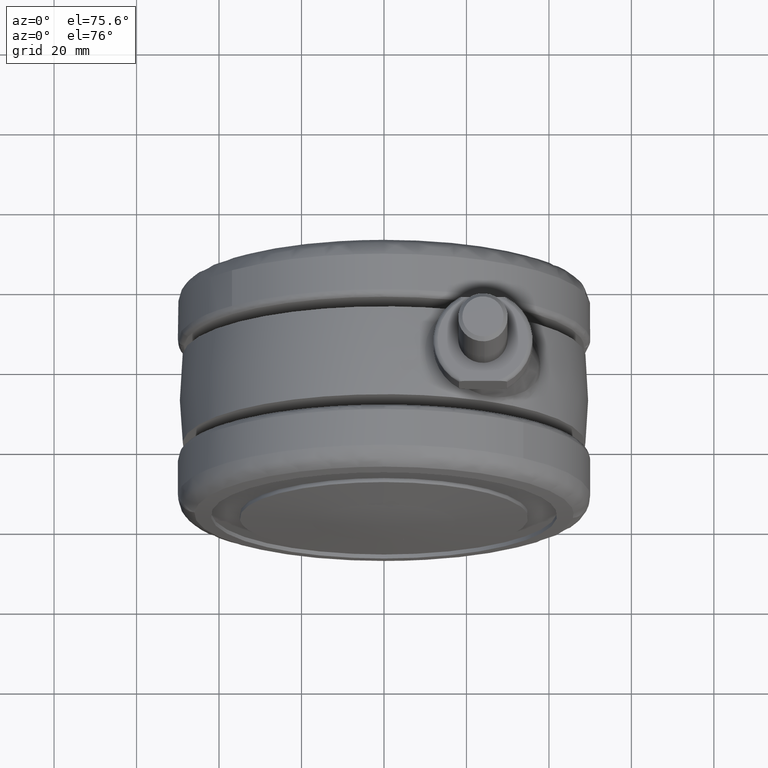
[diagram: clean part render]
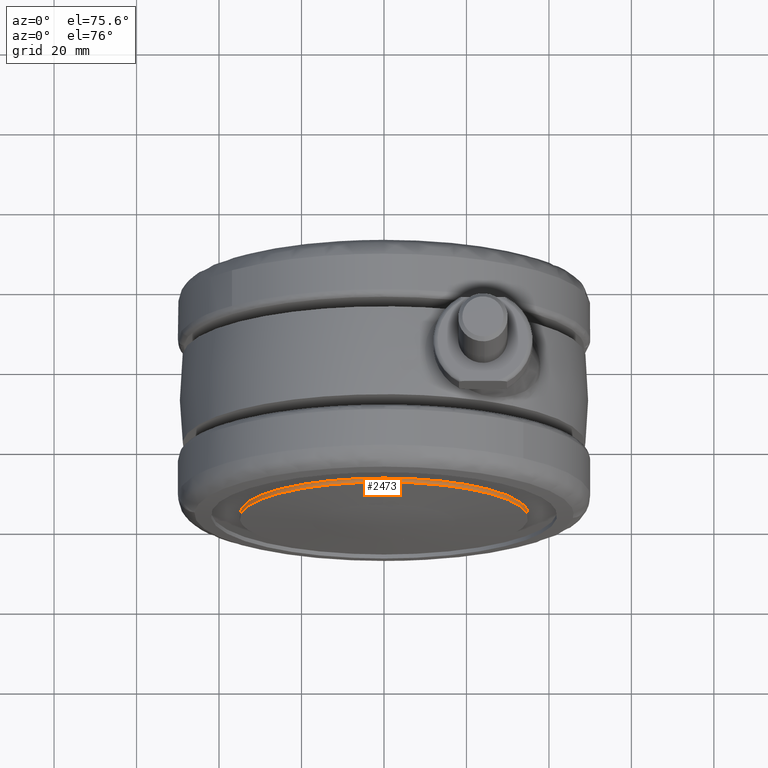
[diagram: same view with one face highlighted and labeled with its STEP entity id]
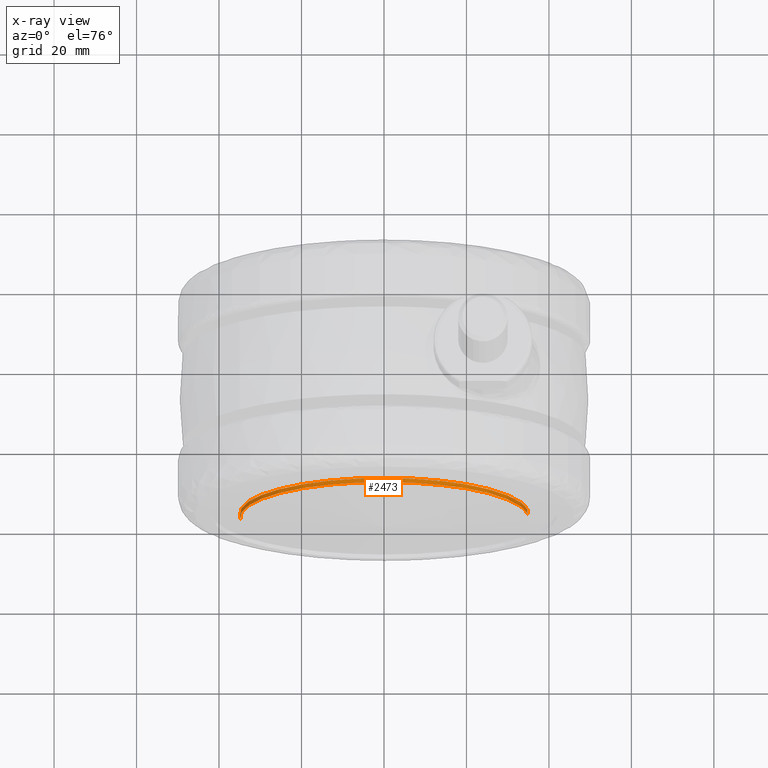
[diagram: x-ray of the same camera — body ghosted, the highlighted face saturated]
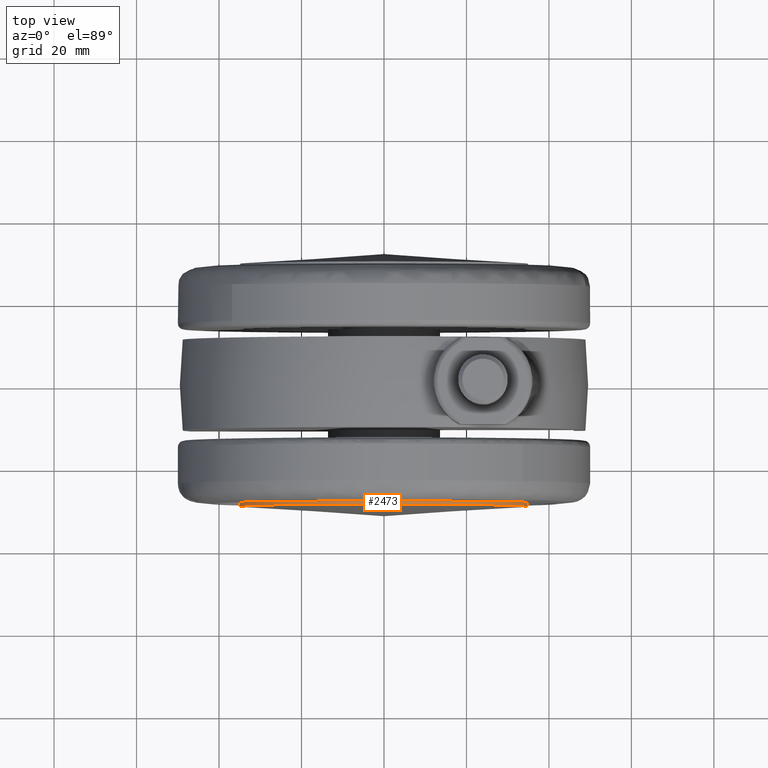
[diagram: same view with one face highlighted and labeled with its STEP entity id]
A machine part, auxiliary view. The second image highlights one B-rep face of the part: STEP entity #2473.
The next image is the same camera in x-ray: the body ghosted, the highlighted face saturated — about 0% of this face is hidden behind the body in this view.
A second angle (top view) of the same face is appended — the face is thin or edge-on in the first view.
In plain terms, the highlighted face is a freeform B-spline surface patch.
Its self-contained STEP definition (entity closure, byte-faithful):
#2310=CARTESIAN_POINT('',(34.755336304148187,-29.429466281998341,4.131173971761895));
#2311=VERTEX_POINT('',#2310);
#2329=CARTESIAN_POINT('',(-34.934720181211787,-29.429466281988251,-2.136662317515716));
#2330=VERTEX_POINT('',#2329);
#2344=CARTESIAN_POINT('',(-34.934720154284733,-28.426129330010252,-2.136662757784329));
#2345=VERTEX_POINT('',#2344);
#2346=CARTESIAN_POINT('',(-34.934720181211787,-29.429466281988251,-2.136662317515716));
#2347=CARTESIAN_POINT('',(-34.934720154284733,-28.426129330010252,-2.136662757784329));
#2348=QUASI_UNIFORM_CURVE('',1,(#2346,#2347),.UNSPECIFIED.,.F.,.U.);
#2349=EDGE_CURVE('',#2330,#2345,#2348,.T.);
#2366=CARTESIAN_POINT('',(34.755336269401873,-28.426129330010252,4.131174264082503));
#2367=VERTEX_POINT('',#2366);
#2383=CARTESIAN_POINT('',(34.755336304148187,-29.429466281998341,4.131173971761895));
#2384=CARTESIAN_POINT('',(34.755336269401873,-28.426129330010252,4.131174264082503));
#2385=QUASI_UNIFORM_CURVE('',1,(#2383,#2384),.UNSPECIFIED.,.F.,.U.);
#2386=EDGE_CURVE('',#2311,#2367,#2385,.T.);
#2391=CARTESIAN_POINT('',(-34.934717944765339,-29.454549705793749,-2.136698883719995));
#2392=CARTESIAN_POINT('',(-37.071416828485340,-29.454549705793749,32.798019061045352));
#2393=CARTESIAN_POINT('',(-2.136698883719995,-29.454549705793749,34.934717944765339));
#2394=CARTESIAN_POINT('',(30.854022179382532,-29.454549705793749,36.952516885638467));
#2395=CARTESIAN_POINT('',(34.755333422728327,-29.454549705793756,4.131198212986548));
#2396=CARTESIAN_POINT('',(-34.934717944765339,-28.400418820615659,-2.136698883719995));
#2397=CARTESIAN_POINT('',(-37.071416828485340,-28.400418820615652,32.798019061045352));
#2398=CARTESIAN_POINT('',(-2.136698883719995,-28.400418820615659,34.934717944765339));
#2399=CARTESIAN_POINT('',(30.854022179382532,-28.400418820615663,36.952516885638467));
#2400=CARTESIAN_POINT('',(34.755333422728327,-28.400418820615659,4.131198212986548));
#2408=(BOUNDED_SURFACE()B_SPLINE_SURFACE(2,1,((#2391,#2396),(#2392,#2397),(#2393,#2398),(#2394,#2399),(#2395,#2400)),.UNSPECIFIED.,.F.,.F.,.U.)B_SPLINE_SURFACE_WITH_KNOTS((3,2,3),(2,2),(0.0,57.989898732233293,113.660201515177210),(0.0,1.0),.UNSPECIFIED.)GEOMETRIC_REPRESENTATION_ITEM()RATIONAL_B_SPLINE_SURFACE(((1.0,1.0),(0.707106781186548,0.707106781186548),(1.0,1.0),(0.718822509939086,0.718822509939086),(0.977505800795127,0.977505800795127)))REPRESENTATION_ITEM('')SURFACE());
#2409=CARTESIAN_POINT('',(0.0,-29.429466281994149,35.0));
#2410=VERTEX_POINT('',#2409);
#2411=CARTESIAN_POINT('',(0.0,-29.429466281994149,35.0));
#2412=CARTESIAN_POINT('',(31.086130242943007,-29.429466281994166,35.0));
#2413=CARTESIAN_POINT('',(34.755336304148187,-29.429466281998344,4.131173971761895));
#2421=(BOUNDED_CURVE()B_SPLINE_CURVE(2,(#2411,#2412,#2413),.UNSPECIFIED.,.F.,.U.)B_SPLINE_CURVE_WITH_KNOTS((3,3),(0.0,0.229562591392399),.UNSPECIFIED.)CURVE()GEOMETRIC_REPRESENTATION_ITEM()RATIONAL_B_SPLINE_CURVE((1.0,0.731050694751692,0.956026985231279))REPRESENTATION_ITEM(''));
#2422=EDGE_CURVE('',#2410,#2311,#2421,.T.);
#2423=ORIENTED_EDGE('',*,*,#2422,.T.);
#2424=ORIENTED_EDGE('',*,*,#2386,.T.);
#2425=CARTESIAN_POINT('',(0.0,-28.426129330010252,35.0));
#2426=VERTEX_POINT('',#2425);
#2427=CARTESIAN_POINT('',(0.0,-28.426129330010252,35.0));
#2428=CARTESIAN_POINT('',(31.086129979642852,-28.426129330010255,35.0));
#2429=CARTESIAN_POINT('',(34.755336269401859,-28.426129330010252,4.131174264082503));
#2437=(BOUNDED_CURVE()B_SPLINE_CURVE(2,(#2427,#2428,#2429),.UNSPECIFIED.,.F.,.U.)B_SPLINE_CURVE_WITH_KNOTS((3,3),(0.0,0.229562589970944),.UNSPECIFIED.)CURVE()GEOMETRIC_REPRESENTATION_ITEM()RATIONAL_B_SPLINE_CURVE((1.0,0.731050696417030,0.956026982445166))REPRESENTATION_ITEM(''));
#2438=EDGE_CURVE('',#2426,#2367,#2437,.T.);
#2439=ORIENTED_EDGE('',*,*,#2438,.F.);
#2440=CARTESIAN_POINT('',(-34.934720154284733,-28.426129330010252,-2.136662757784329));
#2441=CARTESIAN_POINT('',(-35.0,-28.426129330010244,-1.069328601837405));
#2442=CARTESIAN_POINT('',(-35.0,-28.426129330010252,0.0));
#2443=CARTESIAN_POINT('',(-34.999999999999993,-28.426129330010248,34.999999999999993));
#2444=CARTESIAN_POINT('',(0.0,-28.426129330010252,35.0));
#2452=(BOUNDED_CURVE()B_SPLINE_CURVE(2,(#2440,#2441,#2442,#2443,#2444),.UNSPECIFIED.,.F.,.U.)B_SPLINE_CURVE_WITH_KNOTS((3,2,3),(0.739333140672350,0.750000000000000,1.0),.UNSPECIFIED.)CURVE()GEOMETRIC_REPRESENTATION_ITEM()RATIONAL_B_SPLINE_CURVE((0.976072424083774,0.987502996947577,1.0,0.707106781186548,1.0))REPRESENTATION_ITEM(''));
#2453=EDGE_CURVE('',#2345,#2426,#2452,.T.);
#2454=ORIENTED_EDGE('',*,*,#2453,.F.);
#2455=ORIENTED_EDGE('',*,*,#2349,.F.);
#2456=CARTESIAN_POINT('',(-34.934720181211787,-29.429466281988248,-2.136662317515716));
#2457=CARTESIAN_POINT('',(-35.000000000000007,-29.429466281994156,-1.069328381085897));
#2458=CARTESIAN_POINT('',(-35.0,-29.429466281994149,0.0));
#2459=CARTESIAN_POINT('',(-34.999999999999993,-29.429466281994156,34.999999999999993));
#2460=CARTESIAN_POINT('',(0.0,-29.429466281994149,35.0));
#2468=(BOUNDED_CURVE()B_SPLINE_CURVE(2,(#2456,#2457,#2458,#2459,#2460),.UNSPECIFIED.,.F.,.U.)B_SPLINE_CURVE_WITH_KNOTS((3,2,3),(0.739333142846890,0.750000000000000,1.0),.UNSPECIFIED.)CURVE()GEOMETRIC_REPRESENTATION_ITEM()RATIONAL_B_SPLINE_CURVE((0.976072428744235,0.987502999495210,1.0,0.707106781186548,1.0))REPRESENTATION_ITEM(''));
#2469=EDGE_CURVE('',#2330,#2410,#2468,.T.);
#2470=ORIENTED_EDGE('',*,*,#2469,.T.);
#2471=EDGE_LOOP('',(#2423,#2424,#2439,#2454,#2455,#2470));
#2472=FACE_OUTER_BOUND('',#2471,.T.);
#2473=ADVANCED_FACE('',(#2472),#2408,.T.);